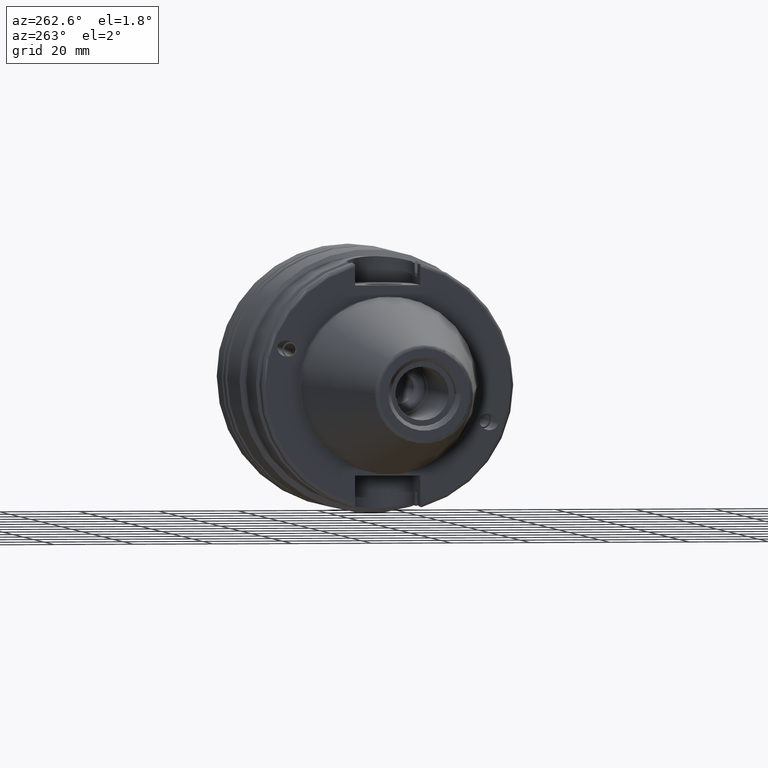
[diagram: clean part render]
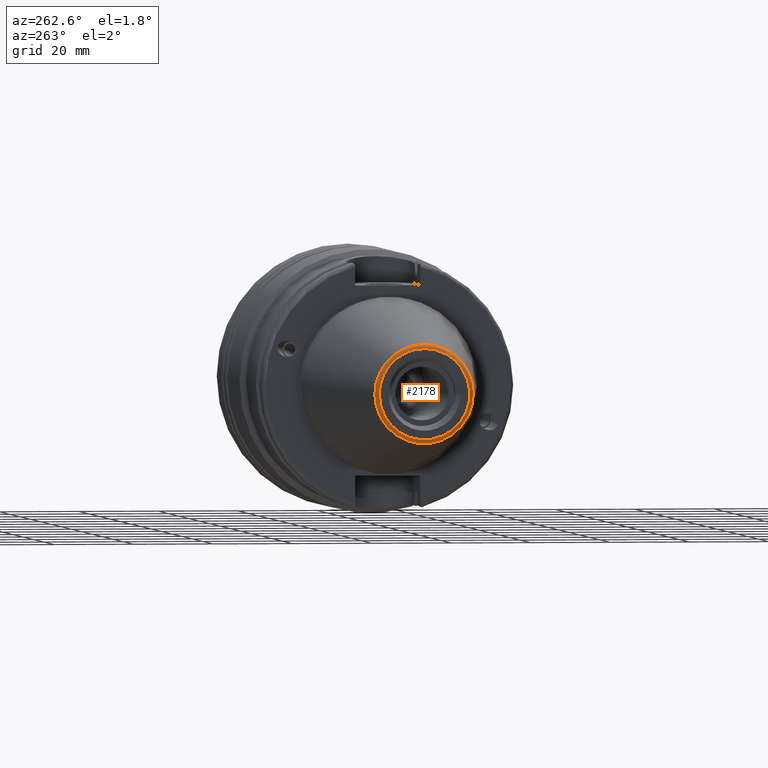
[diagram: same view with one face highlighted and labeled with its STEP entity id]
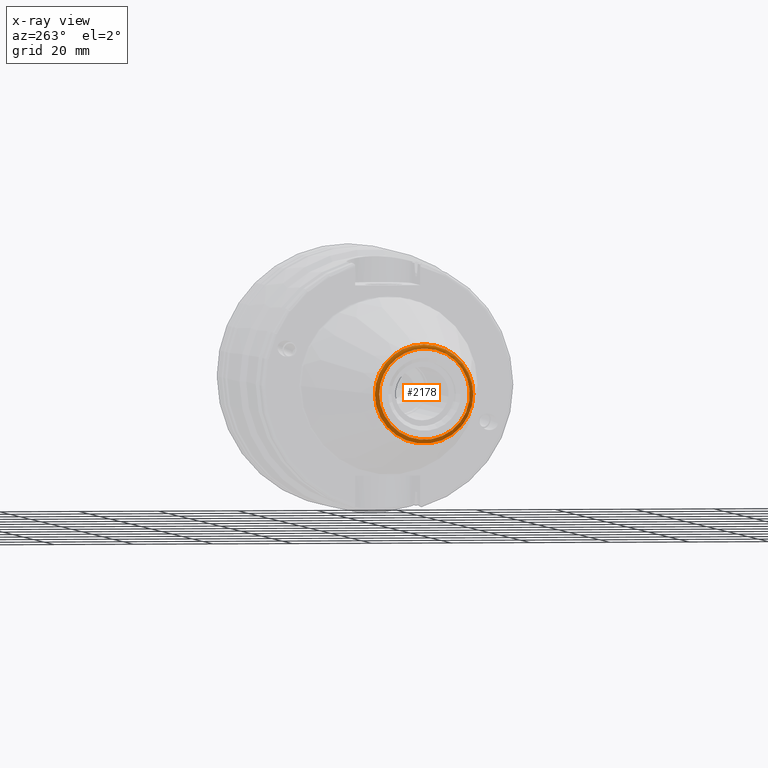
[diagram: x-ray of the same camera — body ghosted, the highlighted face saturated]
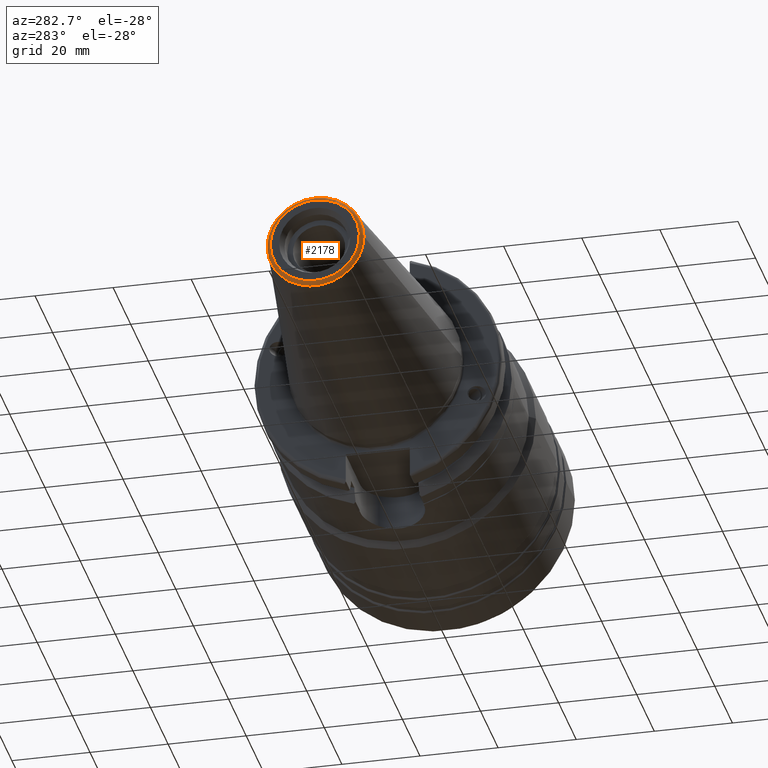
[diagram: same view with one face highlighted and labeled with its STEP entity id]
A machine part, auxiliary view. The second image highlights one B-rep face of the part: STEP entity #2178.
The next image is the same camera in x-ray: the body ghosted, the highlighted face saturated — about 0% of this face is hidden behind the body in this view.
A second angle (auxiliary view) of the same face is appended — the face is thin or edge-on in the first view.
In plain terms, the highlighted toroidal blend (fillet) surface has major radius 11.4071 mm and minor (blend) radius 1 mm.
Its self-contained STEP definition (entity closure, byte-faithful):
#65=TOROIDAL_SURFACE('',#2477,11.4071305970304,1.);
#266=FACE_OUTER_BOUND('',#386,.T.);
#386=EDGE_LOOP('',(#1937,#1938,#1939,#1940,#1941,#1942,#1943));
#777=CIRCLE('',#2478,12.3966635780937);
#778=CIRCLE('',#2479,12.3966635780937);
#779=CIRCLE('',#2480,1.);
#780=CIRCLE('',#2481,11.4071305970304);
#781=CIRCLE('',#2482,11.4071305970304);
#782=CIRCLE('',#2483,12.3966635780937);
#1027=VERTEX_POINT('',#4197);
#1028=VERTEX_POINT('',#4198);
#1029=VERTEX_POINT('',#4200);
#1030=VERTEX_POINT('',#4202);
#1031=VERTEX_POINT('',#4204);
#1351=EDGE_CURVE('',#1027,#1028,#777,.T.);
#1352=EDGE_CURVE('',#1028,#1029,#778,.T.);
#1353=EDGE_CURVE('',#1029,#1030,#779,.T.);
#1354=EDGE_CURVE('',#1030,#1031,#780,.T.);
#1355=EDGE_CURVE('',#1031,#1030,#781,.T.);
#1356=EDGE_CURVE('',#1029,#1027,#782,.T.);
#1937=ORIENTED_EDGE('',*,*,#1351,.T.);
#1938=ORIENTED_EDGE('',*,*,#1352,.T.);
#1939=ORIENTED_EDGE('',*,*,#1353,.T.);
#1940=ORIENTED_EDGE('',*,*,#1354,.T.);
#1941=ORIENTED_EDGE('',*,*,#1355,.T.);
#1942=ORIENTED_EDGE('',*,*,#1353,.F.);
#1943=ORIENTED_EDGE('',*,*,#1356,.T.);
#2178=ADVANCED_FACE('',(#266),#65,.T.);
#2477=AXIS2_PLACEMENT_3D('',#4196,#3124,#3125);
#2478=AXIS2_PLACEMENT_3D('',#4199,#3126,#3127);
#2479=AXIS2_PLACEMENT_3D('',#4201,#3128,#3129);
#2480=AXIS2_PLACEMENT_3D('',#4203,#3130,#3131);
#2481=AXIS2_PLACEMENT_3D('',#4205,#3132,#3133);
#2482=AXIS2_PLACEMENT_3D('',#4206,#3134,#3135);
#2483=AXIS2_PLACEMENT_3D('',#4207,#3136,#3137);
#3124=DIRECTION('center_axis',(1.,0.,0.));
#3125=DIRECTION('ref_axis',(0.,0.,-1.));
#3126=DIRECTION('center_axis',(-1.,0.,0.));
#3127=DIRECTION('ref_axis',(0.,-1.,3.06161699786838E-17));
#3128=DIRECTION('center_axis',(-1.,0.,0.));
#3129=DIRECTION('ref_axis',(0.,-1.,3.06161699786838E-17));
#3130=DIRECTION('center_axis',(0.,-1.,-1.22464679914735E-16));
#3131=DIRECTION('ref_axis',(0.,-1.22464679914735E-16,1.));
#3132=DIRECTION('center_axis',(1.,0.,0.));
#3133=DIRECTION('ref_axis',(0.,-1.,1.83697019872103E-16));
#3134=DIRECTION('center_axis',(1.,0.,0.));
#3135=DIRECTION('ref_axis',(0.,-1.,1.83697019872103E-16));
#3136=DIRECTION('center_axis',(-1.,0.,0.));
#3137=DIRECTION('ref_axis',(0.,-1.,3.06161699786838E-17));
#4196=CARTESIAN_POINT('Origin',(-67.25,0.,0.));
#4197=CARTESIAN_POINT('',(-67.3943068930717,12.3966635780937,-3.79538359275475E-15));
#4198=CARTESIAN_POINT('',(-67.3943068930718,-12.3966635780937,-1.5181534371019E-15));
#4199=CARTESIAN_POINT('Origin',(-67.3943068930717,0.,-1.89769179637738E-15));
#4200=CARTESIAN_POINT('',(-67.3943068930717,-1.5181534371019E-15,12.3966635780937));
#4201=CARTESIAN_POINT('Origin',(-67.3943068930717,0.,-1.89769179637738E-15));
#4202=CARTESIAN_POINT('',(-68.25,-1.39697059731091E-15,11.4071305970304));
#4203=CARTESIAN_POINT('Origin',(-67.25,-1.39697059731091E-15,11.4071305970304));
#4204=CARTESIAN_POINT('',(-68.25,11.4071305970304,-6.98485298655456E-16));
#4205=CARTESIAN_POINT('Origin',(-68.25,0.,0.));
#4206=CARTESIAN_POINT('Origin',(-68.25,0.,0.));
#4207=CARTESIAN_POINT('Origin',(-67.3943068930717,0.,-1.89769179637738E-15));